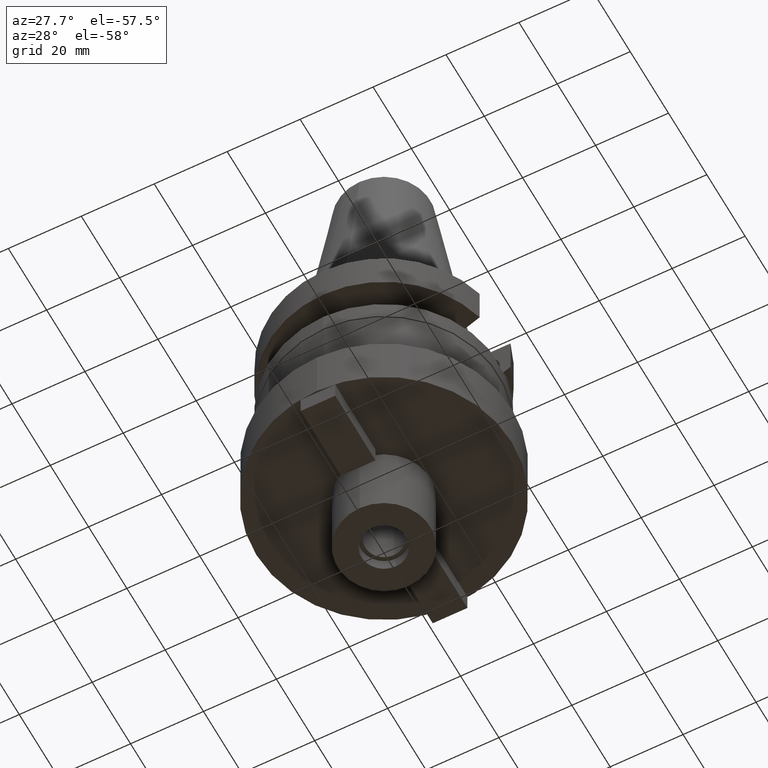
[diagram: clean part render]
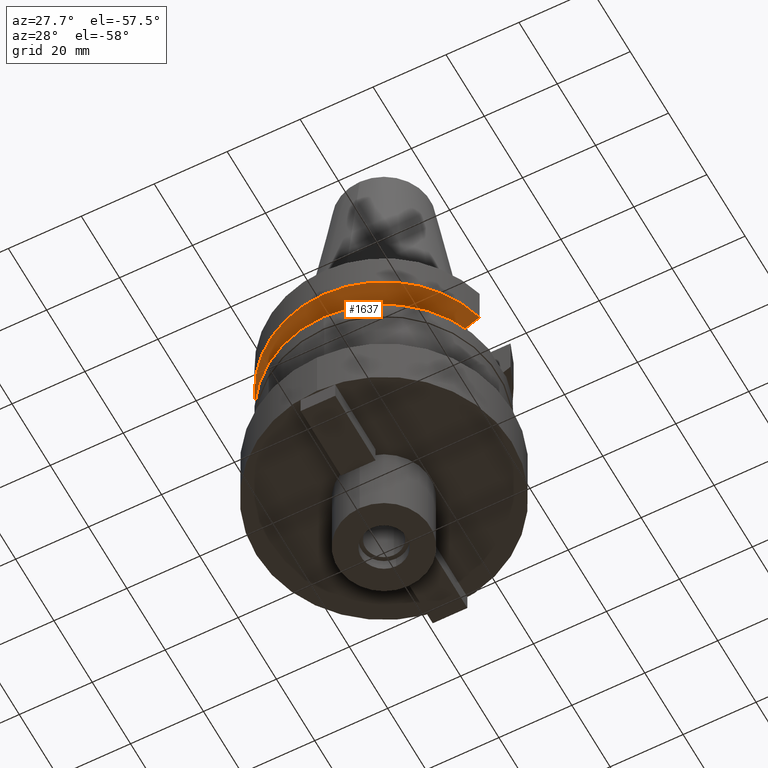
[diagram: same view with one face highlighted and labeled with its STEP entity id]
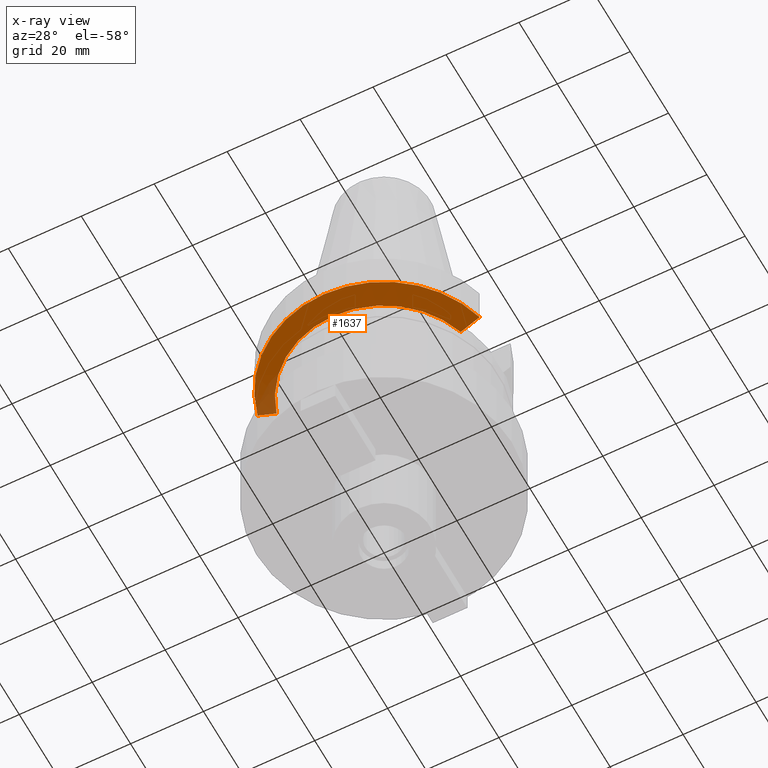
[diagram: x-ray of the same camera — body ghosted, the highlighted face saturated]
A machine part, auxiliary view. The second image highlights one B-rep face of the part: STEP entity #1637.
The next image is the same camera in x-ray: the body ghosted, the highlighted face saturated — about 7% of this face is hidden behind the body in this view.
In plain terms, the highlighted conical surface has half-angle 60 deg.
Its self-contained STEP definition (entity closure, byte-faithful):
#207=CARTESIAN_POINT('',(-3.045402291384E1,-8.049999277236E0,
-1.156551216245E1));
#208=CARTESIAN_POINT('',(-2.987645774692E1,-8.049999277236E0,
-1.188789691064E1));
#209=CARTESIAN_POINT('',(-2.872091191435E1,-8.049999725748E0,
-1.253193836062E1));
#210=CARTESIAN_POINT('',(-2.698538655735E1,-8.050002044029E0,
-1.349404325327E1));
#211=CARTESIAN_POINT('',(-2.582730531591E1,-8.049995413433E0,
-1.413348342042E1));
#212=CARTESIAN_POINT('',(-2.524772413196E1,-8.049995413433E0,
-1.445229204597E1));
#251=CARTESIAN_POINT('',(0.E0,1.065333950388E-14,-1.156550565267E1));
#252=DIRECTION('',(0.E0,0.E0,1.E0));
#253=DIRECTION('',(-9.667943721520E-1,-2.555555555555E-1,0.E0));
#254=AXIS2_PLACEMENT_3D('',#251,#252,#253);
#259=CARTESIAN_POINT('',(0.E0,1.065333950388E-14,-1.156550565267E1));
#260=DIRECTION('',(0.E0,0.E0,1.E0));
#261=DIRECTION('',(0.E0,-1.E0,0.E0));
#262=AXIS2_PLACEMENT_3D('',#259,#260,#261);
#267=CARTESIAN_POINT('',(0.E0,1.065333950388E-14,-1.445225699861E1));
#268=DIRECTION('',(0.E0,0.E0,-1.E0));
#269=DIRECTION('',(9.527442516822E-1,-3.037735849057E-1,0.E0));
#270=AXIS2_PLACEMENT_3D('',#267,#268,#269);
#275=CARTESIAN_POINT('',(0.E0,1.065333950388E-14,-1.445225699861E1));
#276=DIRECTION('',(0.E0,0.E0,-1.E0));
#277=DIRECTION('',(0.E0,-1.E0,0.E0));
#278=AXIS2_PLACEMENT_3D('',#275,#276,#277);
#297=CARTESIAN_POINT('',(2.524772216447E1,-8.050001584201E0,-1.445224489392E1));
#298=CARTESIAN_POINT('',(2.582727362702E1,-8.050001584201E0,-1.413345269167E1));
#299=CARTESIAN_POINT('',(2.698547388991E1,-8.049999813541E0,-1.349419195924E1));
#300=CARTESIAN_POINT('',(2.872100154514E1,-8.049998276303E0,-1.253209167521E1));
#301=CARTESIAN_POINT('',(2.987642829497E1,-8.050004146265E0,-1.188786873325E1));
#302=CARTESIAN_POINT('',(3.045402162679E1,-8.050004146265E0,-1.156546830488E1));
#1391=CARTESIAN_POINT('',(-2.524772413196E1,-8.049995413433E0,
-1.445229204597E1));
#1392=VERTEX_POINT('',#1391);
#1393=CARTESIAN_POINT('',(2.524772266958E1,-8.05E0,-1.445225699861E1));
#1394=CARTESIAN_POINT('',(0.E0,-2.65E1,-1.445225699861E1));
#1395=VERTEX_POINT('',#1393);
#1396=VERTEX_POINT('',#1394);
#1407=CARTESIAN_POINT('',(-3.045402291384E1,-8.049999277236E0,
-1.156551216245E1));
#1408=VERTEX_POINT('',#1407);
#1434=CARTESIAN_POINT('',(0.E0,-3.15E1,-1.156550565267E1));
#1435=CARTESIAN_POINT('',(3.045402272279E1,-8.049999999999E0,
-1.156550565267E1));
#1436=VERTEX_POINT('',#1434);
#1437=VERTEX_POINT('',#1435);
#1621=CARTESIAN_POINT('',(0.E0,1.065333950388E-14,-1.300888132564E1));
#1622=DIRECTION('',(0.E0,0.E0,1.E0));
#1623=DIRECTION('',(0.E0,1.E0,0.E0));
#1624=AXIS2_PLACEMENT_3D('',#1621,#1622,#1623);
#1625=CONICAL_SURFACE('',#1624,2.9E1,6.E1);
#1626=ORIENTED_EDGE('',*,*,#1593,.F.);
#1628=ORIENTED_EDGE('',*,*,#1627,.T.);
#1630=ORIENTED_EDGE('',*,*,#1629,.T.);
#1632=ORIENTED_EDGE('',*,*,#1631,.F.);
#1633=ORIENTED_EDGE('',*,*,#1606,.T.);
#1634=ORIENTED_EDGE('',*,*,#1604,.T.);
#1635=EDGE_LOOP('',(#1626,#1628,#1630,#1632,#1633,#1634));
#1636=FACE_OUTER_BOUND('',#1635,.F.);
#213=B_SPLINE_CURVE_WITH_KNOTS('',3,(#207,#208,#209,#210,#211,#212),
.UNSPECIFIED.,.F.,.F.,(4,1,1,4),(0.E0,3.333333333333E-1,6.666666666667E-1,1.E0),
.UNSPECIFIED.);
#255=CIRCLE('',#254,3.15E1);
#263=CIRCLE('',#262,3.15E1);
#271=CIRCLE('',#270,2.65E1);
#279=CIRCLE('',#278,2.65E1);
#303=B_SPLINE_CURVE_WITH_KNOTS('',3,(#297,#298,#299,#300,#301,#302),
.UNSPECIFIED.,.F.,.F.,(4,1,1,4),(0.E0,3.333333333333E-1,6.666666666667E-1,1.E0),
.UNSPECIFIED.);
#1593=EDGE_CURVE('',#1408,#1392,#213,.T.);
#1604=EDGE_CURVE('',#1396,#1392,#279,.T.);
#1606=EDGE_CURVE('',#1395,#1396,#271,.T.);
#1627=EDGE_CURVE('',#1408,#1436,#255,.T.);
#1629=EDGE_CURVE('',#1436,#1437,#263,.T.);
#1631=EDGE_CURVE('',#1395,#1437,#303,.T.);
#1637=ADVANCED_FACE('',(#1636),#1625,.T.);